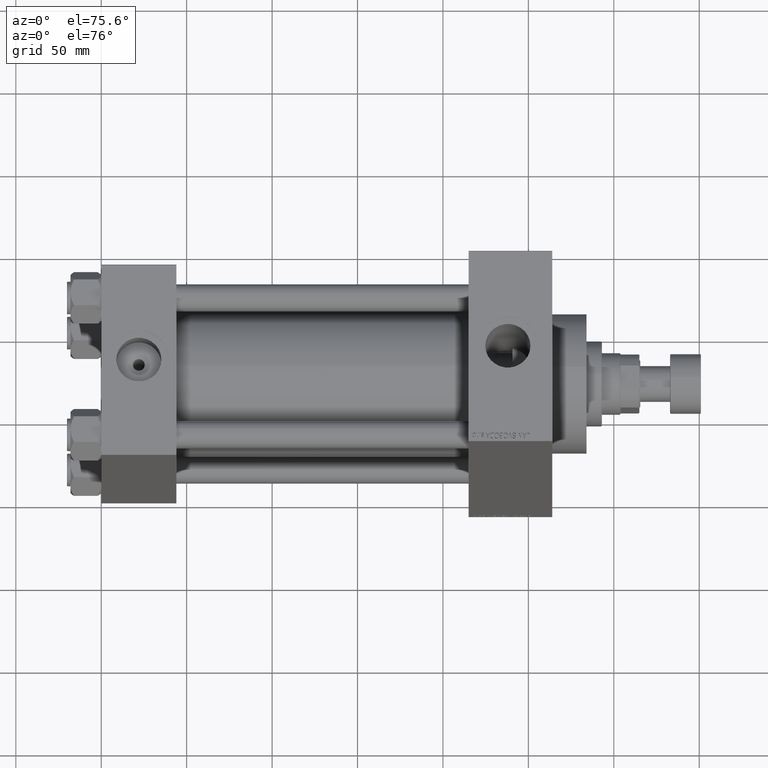
[diagram: clean part render]
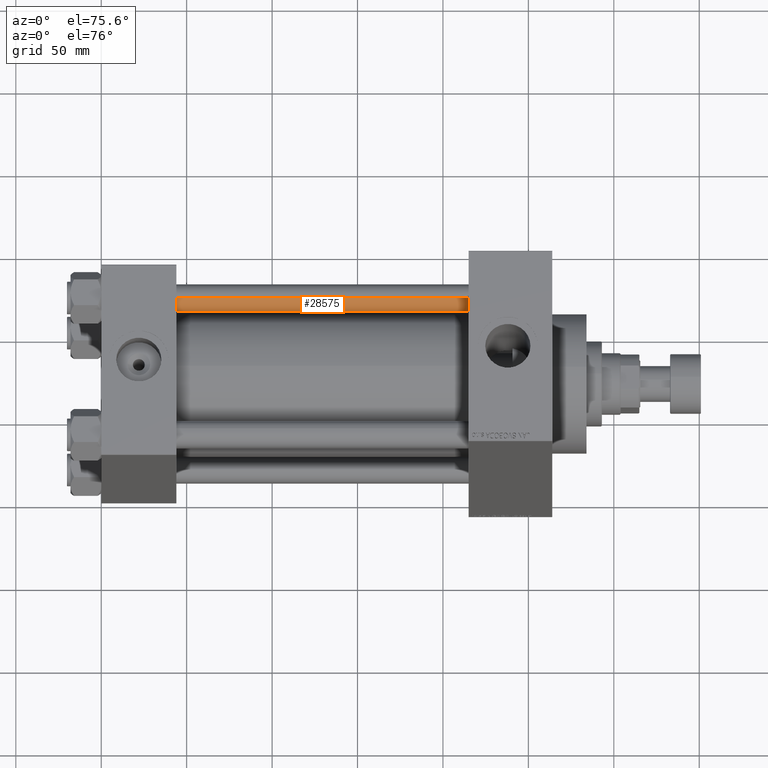
[diagram: same view with one face highlighted and labeled with its STEP entity id]
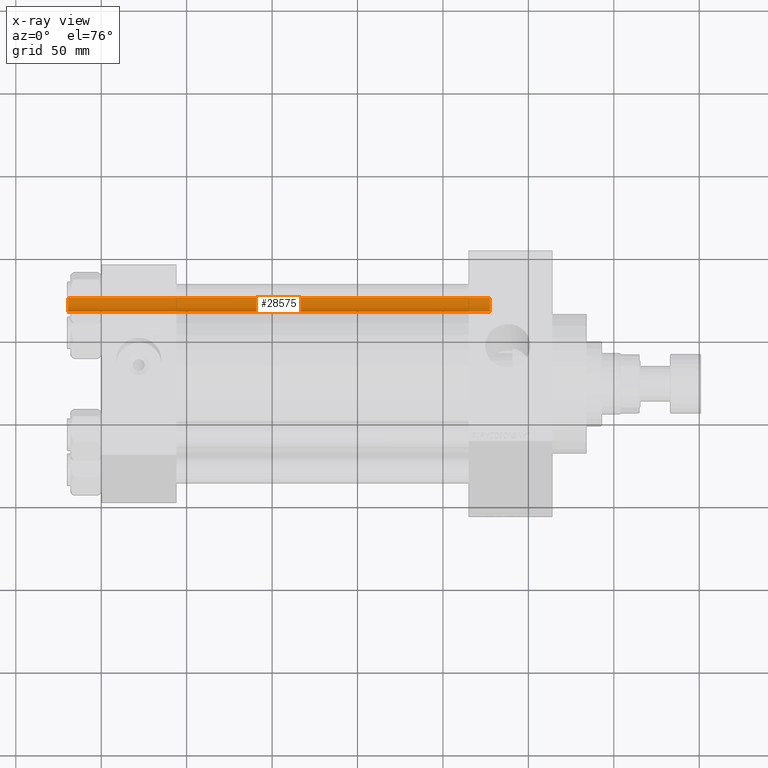
[diagram: x-ray of the same camera — body ghosted, the highlighted face saturated]
A machine part, auxiliary view. The second image highlights one B-rep face of the part: STEP entity #28575.
The next image is the same camera in x-ray: the body ghosted, the highlighted face saturated — about 1% of this face is hidden behind the body in this view.
In plain terms, the highlighted cylindrical surface (edge-blend (fillet) strip) has radius 8 mm, axis along (-1, -0, 0).
Its self-contained STEP definition (entity closure, byte-faithful):
#1273 = CARTESIAN_POINT ( 'NONE',  ( -8.000000000000000000, 0.000000000000000000, 248.0000000000000000 ) ) ;
#1340 = VECTOR ( 'NONE', #45040, 1000.000000000000000 ) ;
#1672 = AXIS2_PLACEMENT_3D ( 'NONE', #13466, #16649, #28650 ) ;
#1784 = ORIENTED_EDGE ( 'NONE', *, *, #21367, .T. ) ;
#1794 = VERTEX_POINT ( 'NONE', #6763 ) ;
#4137 = DIRECTION ( 'NONE',  ( -1.000000000000000000, 0.000000000000000000, 0.000000000000000000 ) ) ;
#6763 = CARTESIAN_POINT ( 'NONE',  ( 8.000000000000000000, 9.797174393178825657E-16, 0.4999999999999726885 ) ) ;
#10635 = CARTESIAN_POINT ( 'NONE',  ( 8.000000000000000000, 9.797174393178825657E-16, 247.5000000000000284 ) ) ;
#11409 = EDGE_LOOP ( 'NONE', ( #14275, #14281, #1784, #34555 ) ) ;
#12211 = CYLINDRICAL_SURFACE ( 'NONE', #32682, 8.000000000000000000 ) ;
#13466 = CARTESIAN_POINT ( 'NONE',  ( 0.000000000000000000, 0.000000000000000000, 247.5000000000000284 ) ) ;
#14275 = ORIENTED_EDGE ( 'NONE', *, *, #26951, .F. ) ;
#14281 = ORIENTED_EDGE ( 'NONE', *, *, #43628, .T. ) ;
#14467 = FACE_OUTER_BOUND ( 'NONE', #11409, .T. ) ;
#16649 = DIRECTION ( 'NONE',  ( 0.000000000000000000, 0.000000000000000000, -1.000000000000000000 ) ) ;
#18210 = EDGE_CURVE ( 'NONE', #42975, #1794, #21368, .T. ) ;
#21367 = EDGE_CURVE ( 'NONE', #31123, #42975, #34785, .T. ) ;
#21368 = CIRCLE ( 'NONE', #24515, 8.000000000000000000 ) ;
#21392 = CARTESIAN_POINT ( 'NONE',  ( -8.000000000000000000, 0.000000000000000000, 0.4999999999999726885 ) ) ;
#21508 = VECTOR ( 'NONE', #31145, 1000.000000000000000 ) ;
#21774 = CARTESIAN_POINT ( 'NONE',  ( 0.000000000000000000, 0.000000000000000000, 0.4999999999999726885 ) ) ;
#22421 = VERTEX_POINT ( 'NONE', #10635 ) ;
#24515 = AXIS2_PLACEMENT_3D ( 'NONE', #21774, #35707, #36670 ) ;
#26951 = EDGE_CURVE ( 'NONE', #22421, #1794, #33350, .T. ) ;
#28575 = ADVANCED_FACE ( 'NONE', ( #14467 ), #12211, .T. ) ;
#28650 = DIRECTION ( 'NONE',  ( 1.000000000000000000, 0.000000000000000000, 0.000000000000000000 ) ) ;
#30566 = CARTESIAN_POINT ( 'NONE',  ( 0.000000000000000000, 0.000000000000000000, 248.0000000000000000 ) ) ;
#31053 = DIRECTION ( 'NONE',  ( -0.000000000000000000, -0.000000000000000000, -1.000000000000000000 ) ) ;
#31123 = VERTEX_POINT ( 'NONE', #44739 ) ;
#31145 = DIRECTION ( 'NONE',  ( -0.000000000000000000, -0.000000000000000000, -1.000000000000000000 ) ) ;
#32682 = AXIS2_PLACEMENT_3D ( 'NONE', #30566, #31053, #4137 ) ;
#33350 = LINE ( 'NONE', #33812, #1340 ) ;
#33812 = CARTESIAN_POINT ( 'NONE',  ( 8.000000000000000000, 9.797174393178825657E-16, 248.0000000000000000 ) ) ;
#34555 = ORIENTED_EDGE ( 'NONE', *, *, #18210, .T. ) ;
#34785 = LINE ( 'NONE', #1273, #21508 ) ;
#35707 = DIRECTION ( 'NONE',  ( -0.000000000000000000, -0.000000000000000000, 1.000000000000000000 ) ) ;
#36670 = DIRECTION ( 'NONE',  ( 1.000000000000000000, 0.000000000000000000, 0.000000000000000000 ) ) ;
#41483 = CIRCLE ( 'NONE', #1672, 8.000000000000000000 ) ;
#42975 = VERTEX_POINT ( 'NONE', #21392 ) ;
#43628 = EDGE_CURVE ( 'NONE', #22421, #31123, #41483, .T. ) ;
#44739 = CARTESIAN_POINT ( 'NONE',  ( -8.000000000000000000, 0.000000000000000000, 247.5000000000000284 ) ) ;
#45040 = DIRECTION ( 'NONE',  ( -0.000000000000000000, -0.000000000000000000, -1.000000000000000000 ) ) ;